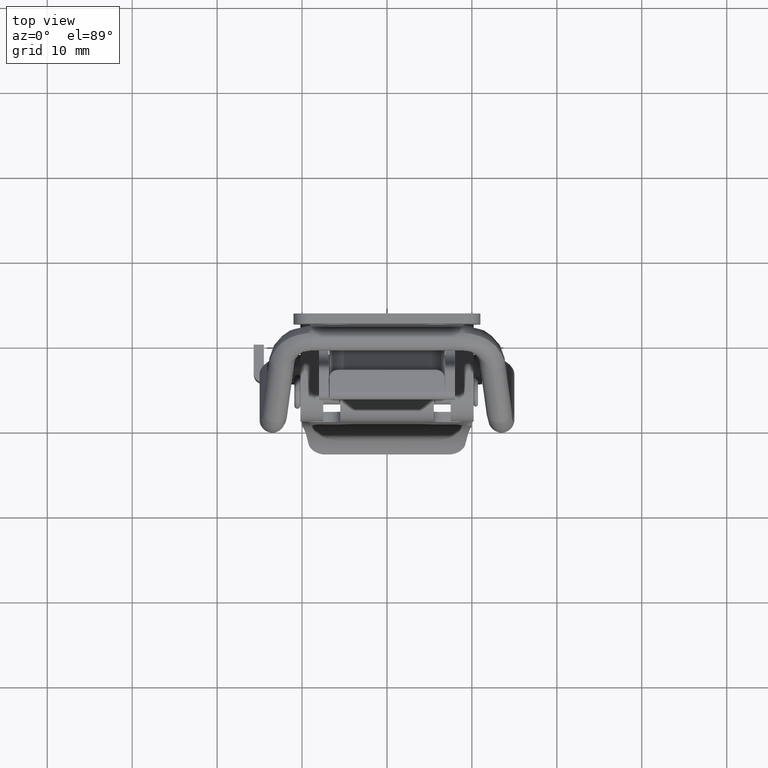
[diagram: clean part render]
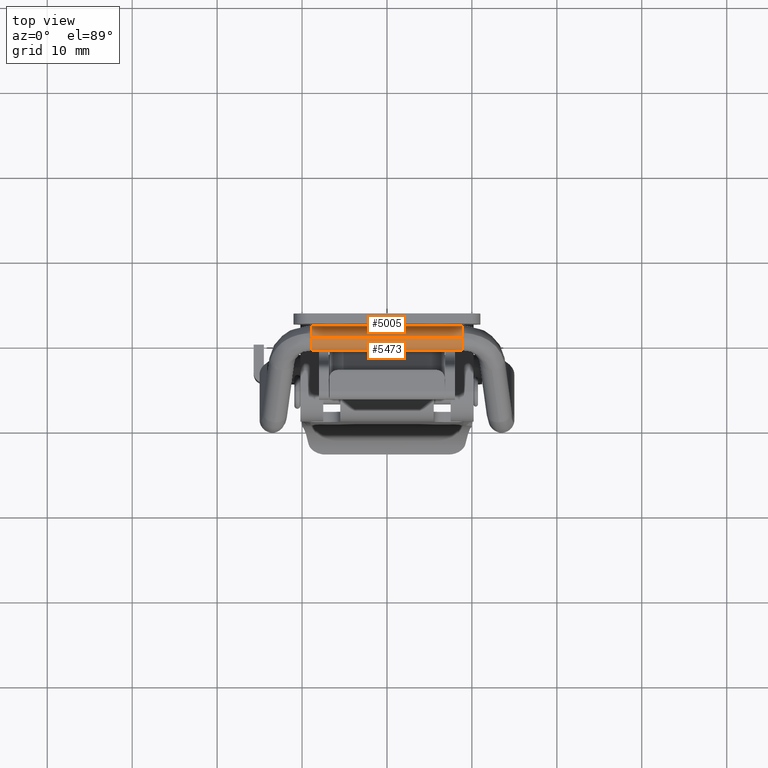
[diagram: same view with one multi-face feature highlighted, each face labeled with its STEP entity id]
A machine part, top view. The highlighted faces form ONE feature: a constant-radius fillet chain: 2 tangent blend faces with common blend radius 1.5 mm. The faces share edges in the B-rep.
Their STEP definitions:
[1] entity #5473 (Cylinder):
#5001 = VERTEX_POINT ( 'NONE', #8173 ) ;
#5009 = EDGE_CURVE ( 'NONE', #5021, #5020, #8250, .T. ) ;
#5013 = VERTEX_POINT ( 'NONE', #8242 ) ;
#5020 = VERTEX_POINT ( 'NONE', #8236 ) ;
#5021 = VERTEX_POINT ( 'NONE', #8235 ) ;
#5023 = VERTEX_POINT ( 'NONE', #8233 ) ;
#5086 = EDGE_CURVE ( 'NONE', #5013, #5001, #8605, .T. ) ;
#5092 = EDGE_CURVE ( 'NONE', #5023, #5020, #8818, .T. ) ;
#5152 = EDGE_CURVE ( 'NONE', #5168, #5021, #9140, .T. ) ;
#5168 = VERTEX_POINT ( 'NONE', #9225 ) ;
#5468 = EDGE_LOOP ( 'NONE', ( #5545, #5478, #5471, #5472, #5474, #5496 ) ) ;
#5471 = ORIENTED_EDGE ( 'NONE', *, *, #5477, .F. ) ;
#5472 = ORIENTED_EDGE ( 'NONE', *, *, #5086, .T. ) ;
#5473 = ADVANCED_FACE ( 'NONE', ( #10376 ), #10487, .T. ) ;
#5474 = ORIENTED_EDGE ( 'NONE', *, *, #5475, .T. ) ;
#5475 = EDGE_CURVE ( 'NONE', #5001, #5023, #10545, .T. ) ;
#5477 = EDGE_CURVE ( 'NONE', #5013, #5168, #10544, .T. ) ;
#5478 = ORIENTED_EDGE ( 'NONE', *, *, #5152, .F. ) ;
#5496 = ORIENTED_EDGE ( 'NONE', *, *, #5092, .T. ) ;
#5545 = ORIENTED_EDGE ( 'NONE', *, *, #5009, .F. ) ;
#8173 = CARTESIAN_POINT ( 'NONE',  ( 7.592126646399667400E-006, 8.903595402811769000, 1.499279425890444500 ) ) ;
#8233 = CARTESIAN_POINT ( 'NONE',  ( -0.5458798888768848800, 8.903595402811769000, -1.397131690367736700 ) ) ;
#8235 = CARTESIAN_POINT ( 'NONE',  ( 6.054507970214557000E-006, -8.903595458910670500, -1.499257425789670000 ) ) ;
#8236 = CARTESIAN_POINT ( 'NONE',  ( 6.054878361171709700E-006, 8.903595402811770800, -1.499257425890615300 ) ) ;
#8242 = CARTESIAN_POINT ( 'NONE',  ( 7.592497035412240000E-006, -8.903595458910670500, 1.499279425789497900 ) ) ;
#8243 = DIRECTION ( 'NONE',  ( 5.162542056811179400E-017, 1.000000000000000000, 6.123040492229599200E-017 ) ) ;
#8244 = VECTOR ( 'NONE', #8243, 1000.000000000000000 ) ;
#8245 = CARTESIAN_POINT ( 'NONE',  ( 6.823502502795686600E-006, -8.903595458910670500, -1.499989000000082200 ) ) ;
#8250 = LINE ( 'NONE', #8245, #8244 ) ;
#8605 = LINE ( 'NONE', #8753, #8752 ) ;
#8751 = DIRECTION ( 'NONE',  ( 5.162542056811179400E-017, 1.000000000000000000, 6.123040492229599200E-017 ) ) ;
#8752 = VECTOR ( 'NONE', #8751, 1000.000000000000000 ) ;
#8753 = CARTESIAN_POINT ( 'NONE',  ( 6.823502502611989700E-006, -8.903595458910670500, 1.500010999999917800 ) ) ;
#8812 = CARTESIAN_POINT ( 'NONE',  ( 6.054878361171709700E-006, 8.903595402811770800, -1.499257425890615300 ) ) ;
#8813 = CARTESIAN_POINT ( 'NONE',  ( -0.09311295622240410600, 8.903595402811777900, -1.499988976130599100 ) ) ;
#8814 = CARTESIAN_POINT ( 'NONE',  ( -0.1862304851944661400, 8.903595402811776100, -1.491292753974059200 ) ) ;
#8815 = CARTESIAN_POINT ( 'NONE',  ( -0.3692487558566245300, 8.903595402811779600, -1.456807979448016700 ) ) ;
#8816 = CARTESIAN_POINT ( 'NONE',  ( -0.4591458339607673000, 8.903595402811774300, -1.431020117380826600 ) ) ;
#8817 = CARTESIAN_POINT ( 'NONE',  ( -0.5458798888768848800, 8.903595402811769000, -1.397131690367736700 ) ) ;
#8818 = B_SPLINE_CURVE_WITH_KNOTS ( 'NONE', 3,
 ( #8817, #8816, #8815, #8814, #8813, #8812 ),
 .UNSPECIFIED., .F., .F.,
 ( 4, 2, 4 ),
 ( 0.5000000000000000000, 0.5296408240964277600, 0.5592816481928555300 ),
 .UNSPECIFIED. ) ;
#9140 = B_SPLINE_CURVE_WITH_KNOTS ( 'NONE', 3,
 ( #9194, #9193, #9192, #9191 ),
 .UNSPECIFIED., .F., .F.,
 ( 4, 4 ),
 ( 0.5000000000000000000, 0.5592841176750655800 ),
 .UNSPECIFIED. ) ;
#9191 = CARTESIAN_POINT ( 'NONE',  ( 6.054507970214557000E-006, -8.903595458910670500, -1.499257425789670000 ) ) ;
#9192 = CARTESIAN_POINT ( 'NONE',  ( -0.1862025072520950000, -8.903595458910670500, -1.498623670428928600 ) ) ;
#9193 = CARTESIAN_POINT ( 'NONE',  ( -0.3724045529219420800, -8.903595458910670500, -1.464911367759152100 ) ) ;
#9194 = CARTESIAN_POINT ( 'NONE',  ( -0.5458798888768696700, -8.903595458910670500, -1.397131690367693800 ) ) ;
#9225 = CARTESIAN_POINT ( 'NONE',  ( -0.5458798888768696700, -8.903595458910670500, -1.397131690367693800 ) ) ;
#10376 = FACE_OUTER_BOUND ( 'NONE', #5468, .T. ) ;
#10472 = CARTESIAN_POINT ( 'NONE',  ( 6.823502502611989700E-006, -8.903595458910670500, 1.099999991788224100E-005 ) ) ;
#10484 = DIRECTION ( 'NONE',  ( 0.0000000000000000000, 0.0000000000000000000, 1.000000000000000000 ) ) ;
#10485 = DIRECTION ( 'NONE',  ( 5.162542056811179400E-017, 1.000000000000000000, 6.123040492229599200E-017 ) ) ;
#10486 = AXIS2_PLACEMENT_3D ( 'NONE', #10472, #10485, #10484 ) ;
#10487 = CYLINDRICAL_SURFACE ( 'NONE', #10486, 1.500000000000000000 ) ;
#10522 = CARTESIAN_POINT ( 'NONE',  ( -0.5458798888768696700, -8.903595458910670500, -1.397131690367693800 ) ) ;
#10523 = CARTESIAN_POINT ( 'NONE',  ( -0.9116509898821103500, -8.903595458910670500, -1.254218883260096900 ) ) ;
#10524 = CARTESIAN_POINT ( 'NONE',  ( -1.216337832365470800, -8.903595458910670500, -0.9616117154709299400 ) ) ;
#10525 = CARTESIAN_POINT ( 'NONE',  ( -1.531507054083455000, -8.903595458910670500, -0.2422240336526355100 ) ) ;
#10526 = CARTESIAN_POINT ( 'NONE',  ( -1.540048673973720000, -8.903595458910670500, 0.1801266113729825000 ) ) ;
#10527 = CARTESIAN_POINT ( 'NONE',  ( -1.254223059756496100, -8.903595458910670500, 0.9116688133855790400 ) ) ;
#10528 = CARTESIAN_POINT ( 'NONE',  ( -0.9616158919670949600, -8.903595458910670500, 1.216355655868423900 ) ) ;
#10529 = CARTESIAN_POINT ( 'NONE',  ( -0.4128212660813840900, -8.903595458910670500, 1.456786760674441400 ) ) ;
#10530 = CARTESIAN_POINT ( 'NONE',  ( -0.2064028334214880500, -8.903595458910670500, 1.498439420312127200 ) ) ;
#10531 = CARTESIAN_POINT ( 'NONE',  ( 7.592497035412240000E-006, -8.903595458910670500, 1.499279425789497900 ) ) ;
#10534 = CARTESIAN_POINT ( 'NONE',  ( -0.5458798888768848800, 8.903595402811769000, -1.397131690367736700 ) ) ;
#10535 = CARTESIAN_POINT ( 'NONE',  ( -0.8682839624250269200, 8.903595402811777900, -1.271163096765749500 ) ) ;
#10536 = CARTESIAN_POINT ( 'NONE',  ( -1.144219957218452800, 8.903595402811779600, -1.029822747502859800 ) ) ;
#10537 = CARTESIAN_POINT ( 'NONE',  ( -1.479779325382022200, 8.903595402811777900, -0.4243066013132542600 ) ) ;
#10538 = CARTESIAN_POINT ( 'NONE',  ( -1.538147198586876400, 8.903595402811779600, -0.06239635168979679200 ) ) ;
#10539 = CARTESIAN_POINT ( 'NONE',  ( -1.409961887830030000, 8.903595402811777900, 0.6179112397457364700 ) ) ;
#10540 = CARTESIAN_POINT ( 'NONE',  ( -1.223888311038062500, 8.903595402811772500, 0.9337632009946962300 ) ) ;
#10541 = CARTESIAN_POINT ( 'NONE',  ( -0.6909765066044545300, 8.903595402811779600, 1.375639769228362000 ) ) ;
#10542 = CARTESIAN_POINT ( 'NONE',  ( -0.3461321760851387400, 8.903595402811774300, 1.500011088726291900 ) ) ;
#10543 = CARTESIAN_POINT ( 'NONE',  ( 7.592126646399667400E-006, 8.903595402811769000, 1.499279425890444500 ) ) ;
#10544 = B_SPLINE_CURVE_WITH_KNOTS ( 'NONE', 3,
 ( #10531, #10530, #10529, #10528, #10527, #10526, #10525, #10524, #10523, #10522 ),
 .UNSPECIFIED., .F., .F.,
 ( 4, 2, 2, 2, 4 ),
 ( 0.05928411767506547300, 0.1249999999999990600, 0.2499999999999993600, 0.3749999999999996700, 0.5000000000000000000 ),
 .UNSPECIFIED. ) ;
#10545 = B_SPLINE_CURVE_WITH_KNOTS ( 'NONE', 3,
 ( #10543, #10542, #10541, #10540, #10539, #10538, #10537, #10536, #10535, #10534 ),
 .UNSPECIFIED., .F., .F.,
 ( 4, 2, 2, 2, 4 ),
 ( 0.05928164819285532800, 0.1694612361446415100, 0.2796408240964276500, 0.3898204120482138300, 0.5000000000000000000 ),
 .UNSPECIFIED. ) ;
[2] entity #5005 (Cylinder):
#4998 = VERTEX_POINT ( 'NONE', #8175 ) ;
#4999 = EDGE_CURVE ( 'NONE', #4998, #5001, #8174, .T. ) ;
#5001 = VERTEX_POINT ( 'NONE', #8173 ) ;
#5002 = ORIENTED_EDGE ( 'NONE', *, *, #4999, .T. ) ;
#5005 = ADVANCED_FACE ( 'NONE', ( #8218 ), #8217, .T. ) ;
#5006 = ORIENTED_EDGE ( 'NONE', *, *, #5009, .T. ) ;
#5007 = EDGE_CURVE ( 'NONE', #5020, #4998, #8206, .T. ) ;
#5009 = EDGE_CURVE ( 'NONE', #5021, #5020, #8250, .T. ) ;
#5010 = EDGE_LOOP ( 'NONE', ( #5012, #5006, #5087, #5002, #5011, #5025 ) ) ;
#5011 = ORIENTED_EDGE ( 'NONE', *, *, #5086, .F. ) ;
#5012 = ORIENTED_EDGE ( 'NONE', *, *, #5024, .F. ) ;
#5013 = VERTEX_POINT ( 'NONE', #8242 ) ;
#5020 = VERTEX_POINT ( 'NONE', #8236 ) ;
#5021 = VERTEX_POINT ( 'NONE', #8235 ) ;
#5022 = VERTEX_POINT ( 'NONE', #8234 ) ;
#5024 = EDGE_CURVE ( 'NONE', #5021, #5022, #8232, .T. ) ;
#5025 = ORIENTED_EDGE ( 'NONE', *, *, #5026, .F. ) ;
#5026 = EDGE_CURVE ( 'NONE', #5022, #5013, #8264, .T. ) ;
#5086 = EDGE_CURVE ( 'NONE', #5013, #5001, #8605, .T. ) ;
#5087 = ORIENTED_EDGE ( 'NONE', *, *, #5007, .T. ) ;
#8167 = CARTESIAN_POINT ( 'NONE',  ( 7.592126646399667400E-006, 8.903595402811769000, 1.499279425890444500 ) ) ;
#8168 = CARTESIAN_POINT ( 'NONE',  ( 0.09312660322741329900, 8.903595402811776100, 1.500010976130436500 ) ) ;
#8169 = CARTESIAN_POINT ( 'NONE',  ( 0.1862441321994738900, 8.903595402811774300, 1.491314753973896500 ) ) ;
#8170 = CARTESIAN_POINT ( 'NONE',  ( 0.3692624028616317000, 8.903595402811779600, 1.456829979447854800 ) ) ;
#8171 = CARTESIAN_POINT ( 'NONE',  ( 0.4591594809657743600, 8.903595402811776100, 1.431042117380664700 ) ) ;
#8172 = CARTESIAN_POINT ( 'NONE',  ( 0.5458935358816376900, 8.903595402811769000, 1.397153690367568100 ) ) ;
#8173 = CARTESIAN_POINT ( 'NONE',  ( 7.592126646399667400E-006, 8.903595402811769000, 1.499279425890444500 ) ) ;
#8174 = B_SPLINE_CURVE_WITH_KNOTS ( 'NONE', 3,
 ( #8172, #8171, #8170, #8169, #8168, #8167 ),
 .UNSPECIFIED., .F., .F.,
 ( 4, 2, 4 ),
 ( 0.0000000000000000000, 0.02964082409642765700, 0.05928164819285532800 ),
 .UNSPECIFIED. ) ;
#8175 = CARTESIAN_POINT ( 'NONE',  ( 0.5458935358816376900, 8.903595402811769000, 1.397153690367568100 ) ) ;
#8195 = CARTESIAN_POINT ( 'NONE',  ( 0.5458935358816376900, 8.903595402811769000, 1.397153690367568100 ) ) ;
#8196 = CARTESIAN_POINT ( 'NONE',  ( 0.8682976094300333100, 8.903595402811776100, 1.271185096765587300 ) ) ;
#8197 = CARTESIAN_POINT ( 'NONE',  ( 1.144233604223459800, 8.903595402811776100, 1.029844747502697900 ) ) ;
#8198 = CARTESIAN_POINT ( 'NONE',  ( 1.479792972387029300, 8.903595402811777900, 0.4243286013130930800 ) ) ;
#8199 = CARTESIAN_POINT ( 'NONE',  ( 1.538160845591883400, 8.903595402811777900, 0.06241835168963650500 ) ) ;
#8200 = CARTESIAN_POINT ( 'NONE',  ( 1.409975534835036900, 8.903595402811776100, -0.6178892397458962700 ) ) ;
#8201 = CARTESIAN_POINT ( 'NONE',  ( 1.223901958043071200, 8.903595402811779600, -0.9337412009948561400 ) ) ;
#8202 = CARTESIAN_POINT ( 'NONE',  ( 0.6909901536094637000, 8.903595402811777900, -1.375617769228522700 ) ) ;
#8203 = CARTESIAN_POINT ( 'NONE',  ( 0.3461458230901480200, 8.903595402811776100, -1.499989088726453800 ) ) ;
#8204 = CARTESIAN_POINT ( 'NONE',  ( 6.054878361171709700E-006, 8.903595402811770800, -1.499257425890615300 ) ) ;
#8206 = B_SPLINE_CURVE_WITH_KNOTS ( 'NONE', 3,
 ( #8204, #8203, #8202, #8201, #8200, #8199, #8198, #8197, #8196, #8195 ),
 .UNSPECIFIED., .F., .F.,
 ( 4, 2, 2, 2, 4 ),
 ( 0.5592816481928555300, 0.6694612361446417000, 0.7796408240964278800, 0.8898204120482139400, 1.000000000000000000 ),
 .UNSPECIFIED. ) ;
#8207 = DIRECTION ( 'NONE',  ( 0.0000000000000000000, 0.0000000000000000000, 1.000000000000000000 ) ) ;
#8208 = DIRECTION ( 'NONE',  ( 5.162542056811179400E-017, 1.000000000000000000, 6.123040492229599200E-017 ) ) ;
#8209 = CARTESIAN_POINT ( 'NONE',  ( 6.823502502611989700E-006, -8.903595458910670500, 1.099999991788224100E-005 ) ) ;
#8210 = AXIS2_PLACEMENT_3D ( 'NONE', #8209, #8208, #8207 ) ;
#8217 = CYLINDRICAL_SURFACE ( 'NONE', #8210, 1.500000000000000000 ) ;
#8218 = FACE_OUTER_BOUND ( 'NONE', #5010, .T. ) ;
#8220 = CARTESIAN_POINT ( 'NONE',  ( 0.5458935358818759500, -8.903595458910670500, 1.397153690367523900 ) ) ;
#8221 = CARTESIAN_POINT ( 'NONE',  ( 0.9116646368881700100, -8.903595458910670500, 1.254240883258914000 ) ) ;
#8222 = CARTESIAN_POINT ( 'NONE',  ( 1.216351479371020200, -8.903595458910670500, 0.9616337154695060500 ) ) ;
#8223 = CARTESIAN_POINT ( 'NONE',  ( 1.531520701088459900, -8.903595458910670500, 0.2422460336524645000 ) ) ;
#8224 = CARTESIAN_POINT ( 'NONE',  ( 1.540062320978725000, -8.903595458910670500, -0.1801046113731610000 ) ) ;
#8225 = CARTESIAN_POINT ( 'NONE',  ( 1.254236706761499900, -8.903595458910670500, -0.9116468133857569300 ) ) ;
#8226 = CARTESIAN_POINT ( 'NONE',  ( 0.9616295389720950200, -8.903595458910670500, -1.216333655868610000 ) ) ;
#8227 = CARTESIAN_POINT ( 'NONE',  ( 0.4128349130863885900, -8.903595458910670500, -1.456764760674622800 ) ) ;
#8228 = CARTESIAN_POINT ( 'NONE',  ( 0.2064164804264936600, -8.903595458910670500, -1.498417420312308200 ) ) ;
#8229 = CARTESIAN_POINT ( 'NONE',  ( 6.054507970214557000E-006, -8.903595458910670500, -1.499257425789670000 ) ) ;
#8232 = B_SPLINE_CURVE_WITH_KNOTS ( 'NONE', 3,
 ( #8229, #8228, #8227, #8226, #8225, #8224, #8223, #8222, #8221, #8220 ),
 .UNSPECIFIED., .F., .F.,
 ( 4, 2, 2, 2, 4 ),
 ( 0.5592841176750655800, 0.6249999999999991100, 0.7499999999999993300, 0.8749999999999996700, 1.000000000000000000 ),
 .UNSPECIFIED. ) ;
#8234 = CARTESIAN_POINT ( 'NONE',  ( 0.5458935358818759500, -8.903595458910670500, 1.397153690367523900 ) ) ;
#8235 = CARTESIAN_POINT ( 'NONE',  ( 6.054507970214557000E-006, -8.903595458910670500, -1.499257425789670000 ) ) ;
#8236 = CARTESIAN_POINT ( 'NONE',  ( 6.054878361171709700E-006, 8.903595402811770800, -1.499257425890615300 ) ) ;
#8242 = CARTESIAN_POINT ( 'NONE',  ( 7.592497035412240000E-006, -8.903595458910670500, 1.499279425789497900 ) ) ;
#8243 = DIRECTION ( 'NONE',  ( 5.162542056811179400E-017, 1.000000000000000000, 6.123040492229599200E-017 ) ) ;
#8244 = VECTOR ( 'NONE', #8243, 1000.000000000000000 ) ;
#8245 = CARTESIAN_POINT ( 'NONE',  ( 6.823502502795686600E-006, -8.903595458910670500, -1.499989000000082200 ) ) ;
#8250 = LINE ( 'NONE', #8245, #8244 ) ;
#8260 = CARTESIAN_POINT ( 'NONE',  ( 7.592497035412240000E-006, -8.903595458910670500, 1.499279425789497900 ) ) ;
#8261 = CARTESIAN_POINT ( 'NONE',  ( 0.1862161542584600800, -8.903595458910670500, 1.498645670428750100 ) ) ;
#8262 = CARTESIAN_POINT ( 'NONE',  ( 0.3724181999283066600, -8.903595458910670500, 1.464933367758728200 ) ) ;
#8263 = CARTESIAN_POINT ( 'NONE',  ( 0.5458935358818759500, -8.903595458910670500, 1.397153690367523900 ) ) ;
#8264 = B_SPLINE_CURVE_WITH_KNOTS ( 'NONE', 3,
 ( #8263, #8262, #8261, #8260 ),
 .UNSPECIFIED., .F., .F.,
 ( 4, 4 ),
 ( 0.0000000000000000000, 0.05928411767506547300 ),
 .UNSPECIFIED. ) ;
#8605 = LINE ( 'NONE', #8753, #8752 ) ;
#8751 = DIRECTION ( 'NONE',  ( 5.162542056811179400E-017, 1.000000000000000000, 6.123040492229599200E-017 ) ) ;
#8752 = VECTOR ( 'NONE', #8751, 1000.000000000000000 ) ;
#8753 = CARTESIAN_POINT ( 'NONE',  ( 6.823502502611989700E-006, -8.903595458910670500, 1.500010999999917800 ) ) ;